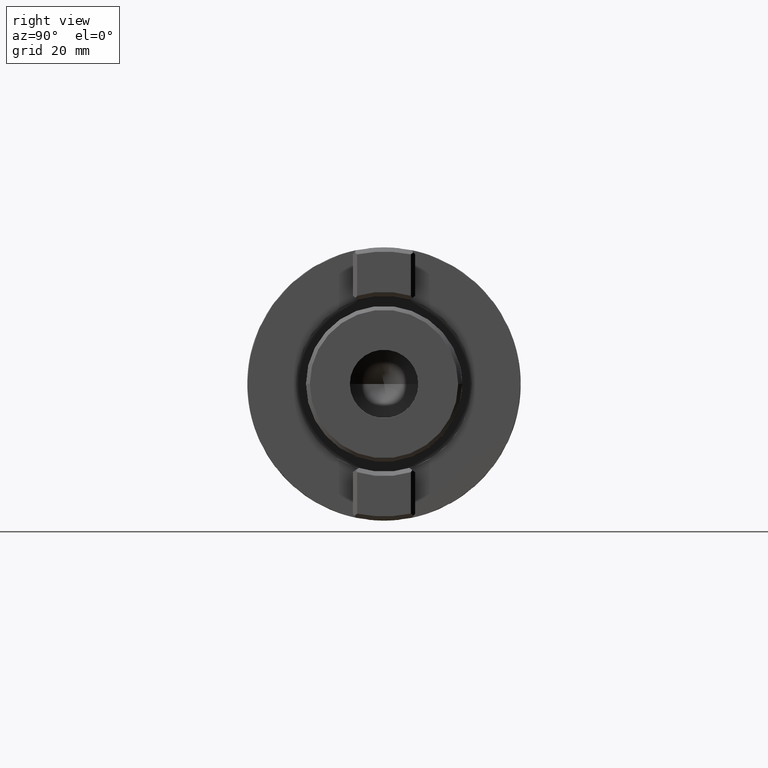
[diagram: clean part render]
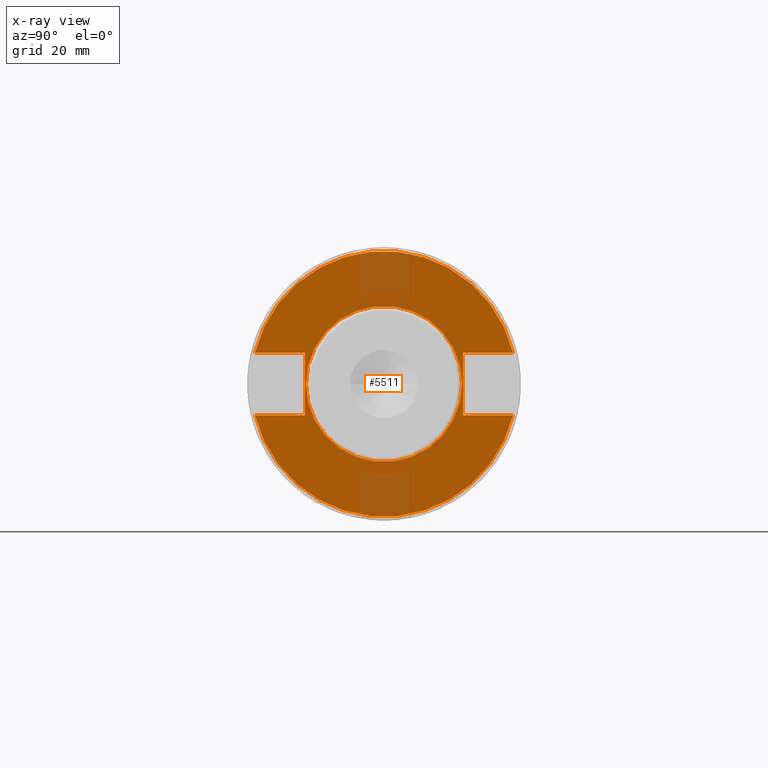
[diagram: x-ray — body ghosted, one internal face saturated and labeled with its STEP entity id]
A machine part, right view, then the same camera in x-ray: the body is ghosted and one INTERNAL B-rep face — a face not visible from any outside direction — is saturated and labeled: STEP entity #5511.
In plain terms, the highlighted planar face has unit normal (1, 0, 0).
Its self-contained STEP definition (entity closure, byte-faithful):
#1694=CARTESIAN_POINT('',(8.6E1,0.E0,0.E0));
#1695=DIRECTION('',(1.E0,0.E0,0.E0));
#1696=DIRECTION('',(0.E0,9.715670198439E-1,2.367647058824E-1));
#1697=AXIS2_PLACEMENT_3D('',#1694,#1695,#1696);
#1712=CARTESIAN_POINT('',(8.6E1,0.E0,0.E0));
#1713=DIRECTION('',(1.E0,0.E0,0.E0));
#1714=DIRECTION('',(0.E0,-9.715670198439E-1,-2.367647058824E-1));
#1715=AXIS2_PLACEMENT_3D('',#1712,#1713,#1714);
#1734=CARTESIAN_POINT('',(8.6E1,0.E0,0.E0));
#1735=DIRECTION('',(1.E0,0.E0,0.E0));
#1736=DIRECTION('',(0.E0,1.E0,0.E0));
#1737=AXIS2_PLACEMENT_3D('',#1734,#1735,#1736);
#1739=CARTESIAN_POINT('',(8.6E1,0.E0,0.E0));
#1740=DIRECTION('',(-1.E0,0.E0,0.E0));
#1741=DIRECTION('',(0.E0,1.E0,0.E0));
#1742=AXIS2_PLACEMENT_3D('',#1739,#1740,#1741);
#1744=DIRECTION('',(0.E0,0.E0,-1.E0));
#1745=VECTOR('',#1744,1.61E1);
#1746=CARTESIAN_POINT('',(8.6E1,-2.025E1,8.05E0));
#1747=LINE('',#1746,#1745);
#1748=DIRECTION('',(0.E0,1.E0,0.E0));
#1749=VECTOR('',#1748,1.278327867469E1);
#1750=CARTESIAN_POINT('',(8.6E1,-3.303327867469E1,8.05E0));
#1751=LINE('',#1750,#1749);
#1752=DIRECTION('',(0.E0,-1.E0,0.E0));
#1753=VECTOR('',#1752,1.278327867469E1);
#1754=CARTESIAN_POINT('',(8.6E1,3.303327867469E1,8.05E0));
#1755=LINE('',#1754,#1753);
#1756=DIRECTION('',(0.E0,0.E0,-1.E0));
#1757=VECTOR('',#1756,1.61E1);
#1758=CARTESIAN_POINT('',(8.6E1,2.025E1,8.05E0));
#1759=LINE('',#1758,#1757);
#1760=DIRECTION('',(0.E0,-1.E0,0.E0));
#1761=VECTOR('',#1760,1.278327867469E1);
#1762=CARTESIAN_POINT('',(8.6E1,3.303327867469E1,-8.05E0));
#1763=LINE('',#1762,#1761);
#1764=DIRECTION('',(0.E0,1.E0,0.E0));
#1765=VECTOR('',#1764,1.278327867469E1);
#1766=CARTESIAN_POINT('',(8.6E1,-3.303327867469E1,-8.05E0));
#1767=LINE('',#1766,#1765);
#3471=CARTESIAN_POINT('',(8.6E1,2.E1,0.E0));
#3472=CARTESIAN_POINT('',(8.6E1,-2.E1,0.E0));
#3473=VERTEX_POINT('',#3471);
#3474=VERTEX_POINT('',#3472);
#3497=CARTESIAN_POINT('',(8.6E1,2.025E1,8.05E0));
#3498=CARTESIAN_POINT('',(8.6E1,2.025E1,-8.05E0));
#3499=VERTEX_POINT('',#3497);
#3500=VERTEX_POINT('',#3498);
#3501=CARTESIAN_POINT('',(8.6E1,3.303327867469E1,8.05E0));
#3502=VERTEX_POINT('',#3501);
#3503=CARTESIAN_POINT('',(8.6E1,3.303327867469E1,-8.05E0));
#3504=VERTEX_POINT('',#3503);
#3516=CARTESIAN_POINT('',(8.6E1,-2.025E1,8.05E0));
#3517=VERTEX_POINT('',#3516);
#3518=CARTESIAN_POINT('',(8.6E1,-2.025E1,-8.05E0));
#3519=VERTEX_POINT('',#3518);
#3524=CARTESIAN_POINT('',(8.6E1,-3.303327867469E1,8.05E0));
#3525=VERTEX_POINT('',#3524);
#3526=CARTESIAN_POINT('',(8.6E1,-3.303327867469E1,-8.05E0));
#3527=VERTEX_POINT('',#3526);
#5488=CARTESIAN_POINT('',(8.6E1,0.E0,0.E0));
#5489=DIRECTION('',(1.E0,0.E0,0.E0));
#5490=DIRECTION('',(0.E0,-1.E0,0.E0));
#5491=AXIS2_PLACEMENT_3D('',#5488,#5489,#5490);
#5492=PLANE('',#5491);
#5493=ORIENTED_EDGE('',*,*,#5422,.F.);
#5494=ORIENTED_EDGE('',*,*,#5439,.F.);
#5495=ORIENTED_EDGE('',*,*,#5453,.F.);
#5496=ORIENTED_EDGE('',*,*,#5477,.T.);
#5498=ORIENTED_EDGE('',*,*,#5497,.T.);
#5500=ORIENTED_EDGE('',*,*,#5499,.F.);
#5501=ORIENTED_EDGE('',*,*,#5464,.F.);
#5502=ORIENTED_EDGE('',*,*,#5406,.T.);
#5503=EDGE_LOOP('',(#5493,#5494,#5495,#5496,#5498,#5500,#5501,#5502));
#5504=FACE_OUTER_BOUND('',#5503,.F.);
#5506=ORIENTED_EDGE('',*,*,#5505,.T.);
#5508=ORIENTED_EDGE('',*,*,#5507,.F.);
#5509=EDGE_LOOP('',(#5506,#5508));
#5510=FACE_BOUND('',#5509,.F.);
#5511=ADVANCED_FACE('',(#5504,#5510),#5492,.T.);
#1698=CIRCLE('',#1697,3.4E1);
#1716=CIRCLE('',#1715,3.4E1);
#1738=CIRCLE('',#1737,2.E1);
#1743=CIRCLE('',#1742,2.E1);
#5406=EDGE_CURVE('',#3527,#3519,#1767,.T.);
#5422=EDGE_CURVE('',#3517,#3519,#1747,.T.);
#5439=EDGE_CURVE('',#3525,#3517,#1751,.T.);
#5453=EDGE_CURVE('',#3502,#3525,#1698,.T.);
#5464=EDGE_CURVE('',#3527,#3504,#1716,.T.);
#5477=EDGE_CURVE('',#3502,#3499,#1755,.T.);
#5497=EDGE_CURVE('',#3499,#3500,#1759,.T.);
#5499=EDGE_CURVE('',#3504,#3500,#1763,.T.);
#5505=EDGE_CURVE('',#3473,#3474,#1738,.T.);
#5507=EDGE_CURVE('',#3473,#3474,#1743,.T.);